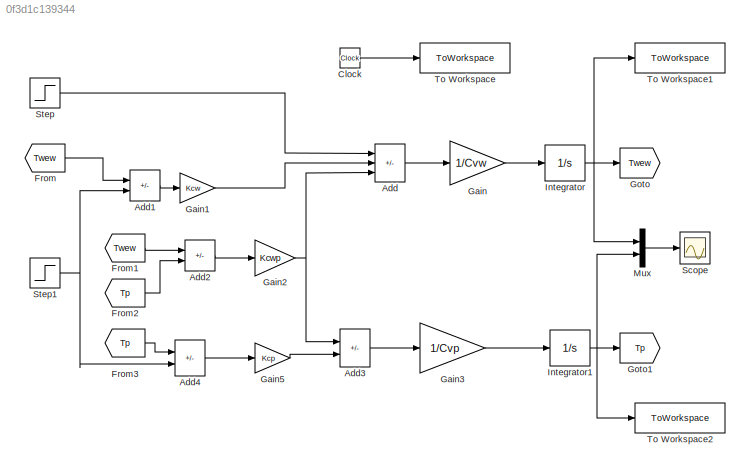
MODEL slx_0f3d1c139344
KIND model
CONFIG AbsTol = auto
CONFIG EnableMultiTasking = off
CONFIG FixedStep = auto
CONFIG MaxStep = auto
CONFIG MinStep = auto
CONFIG RelTol = 1e-3
CONFIG SampleTimeConstraint = Unconstrained
CONFIG SolverName = VariableStepAuto
CONFIG StartTime = 0.0
CONFIG StopTime = czas_symulacji
BLOCK [Sum] Add
  IconShape = rectangular
  Inputs = +--
BLOCK [Sum] Add1
  IconShape = rectangular
  Inputs = +-
BLOCK [Sum] Add2
  IconShape = rectangular
  Inputs = +-
BLOCK [Sum] Add3
  IconShape = rectangular
  Inputs = +-
BLOCK [Sum] Add4
  IconShape = rectangular
  Inputs = +-
BLOCK [Clock] Clock
BLOCK [From] From
  GotoTag = Twew
BLOCK [From] From1
  GotoTag = Twew
BLOCK [From] From2
  GotoTag = Tp
BLOCK [From] From3
  GotoTag = Tp
BLOCK [Gain] Gain
  Gain = 1/Cvw
BLOCK [Gain] Gain1
  Gain = Kcw
BLOCK [Gain] Gain2
  Gain = Kcwp
BLOCK [Gain] Gain3
  Gain = 1/Cvp
BLOCK [Gain] Gain5
  Gain = Kcp
BLOCK [Goto] Goto
  GotoTag = Twew
BLOCK [Goto] Goto1
  GotoTag = Tp
BLOCK [Integrator] Integrator
  InitialCondition = Twew0
BLOCK [Integrator] Integrator1
  InitialCondition = Tp0
BLOCK [Mux] Mux
  DisplayOption = bar
  Inputs = 2
BLOCK [Scope] Scope
  Floating = off
  NumInputPorts = 1
  ScopeSpecificationString = Simulink.scopes.TimeScopeBlockCfg('CurrentConfiguration', extmgr.ConfigurationSet(extmgr.Configuration('Core','General UI',true),extmgr.Configuration('Core','Source UI',true),extmgr.Configuration('Sources','WiredSimulink',true),extmgr.Configuration('Visuals','Time Domain',true,'SerializedDisplays',{struct('MinYLimReal','-0.5','MaxYLimReal','4.5','YLabelReal','','MinYLimMag','0.00000','MaxYLimMag',...<+1392ch>
BLOCK [Step] Step
  After = qg0+dqg
  Before = qg0
  SampleTime = 0
  Time = t0
BLOCK [Step] Step1
  After = Tzew0+dTzew
  Before = Tzew0
  SampleTime = 0
  Time = t0
BLOCK [ToWorkspace] To Workspace
  FixptAsFi = on
  MaxDataPoints = inf
  SampleTime = -1
  SaveFormat = Timeseries
  VariableName = t
BLOCK [ToWorkspace] To Workspace1
  FixptAsFi = on
  MaxDataPoints = inf
  SampleTime = -1
  VariableName = Twew
BLOCK [ToWorkspace] To Workspace2
  FixptAsFi = on
  MaxDataPoints = inf
  SampleTime = -1
  VariableName = Tp
LINE Add1:1 -> Gain1:1
LINE Add2:1 -> Gain2:1
LINE Add3:1 -> Gain3:1
LINE Add4:1 -> Gain5:1
LINE Add:1 -> Gain:1
LINE Clock:1 -> To Workspace:1
LINE From1:1 -> Add2:1
LINE From2:1 -> Add2:2
LINE From3:1 -> Add4:1
LINE From:1 -> Add1:1
LINE Gain1:1 -> Add:2
NET Gain2:1 -> Add3:1, Add:3
LINE Gain3:1 -> Integrator1:1
LINE Gain5:1 -> Add3:2
LINE Gain:1 -> Integrator:1
NET Integrator1:1 -> Goto1:1, Mux:2, To Workspace2:1
NET Integrator:1 -> Goto:1, Mux:1, To Workspace1:1
LINE Mux:1 -> Scope:1
NET Step1:1 -> Add1:2, Add4:2
LINE Step:1 -> Add:1
note: NET lines group one-source signal fan-out (src -> all destinations, sorted); 1:1 wires keep LINE
